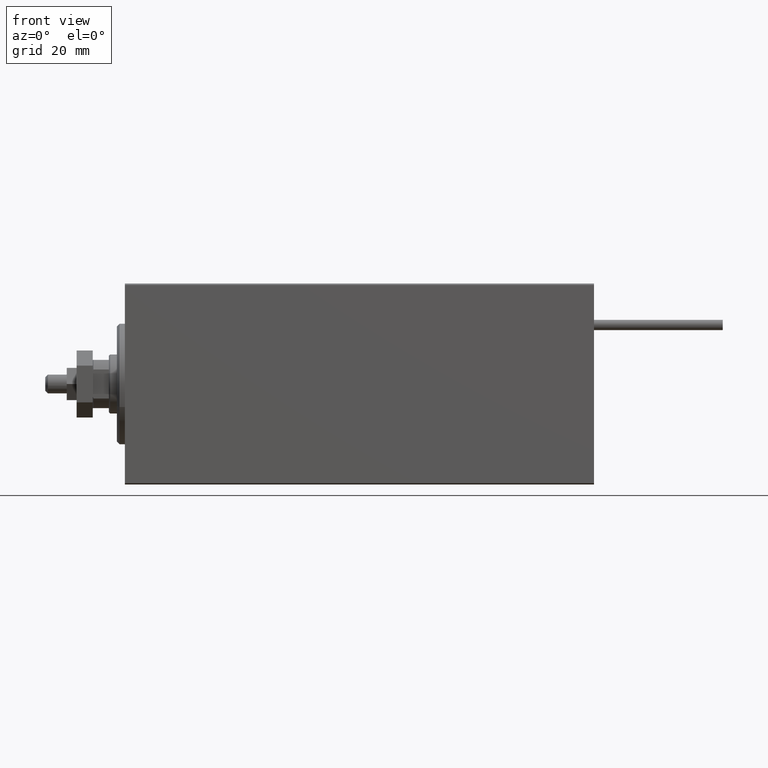
[diagram: clean part render]
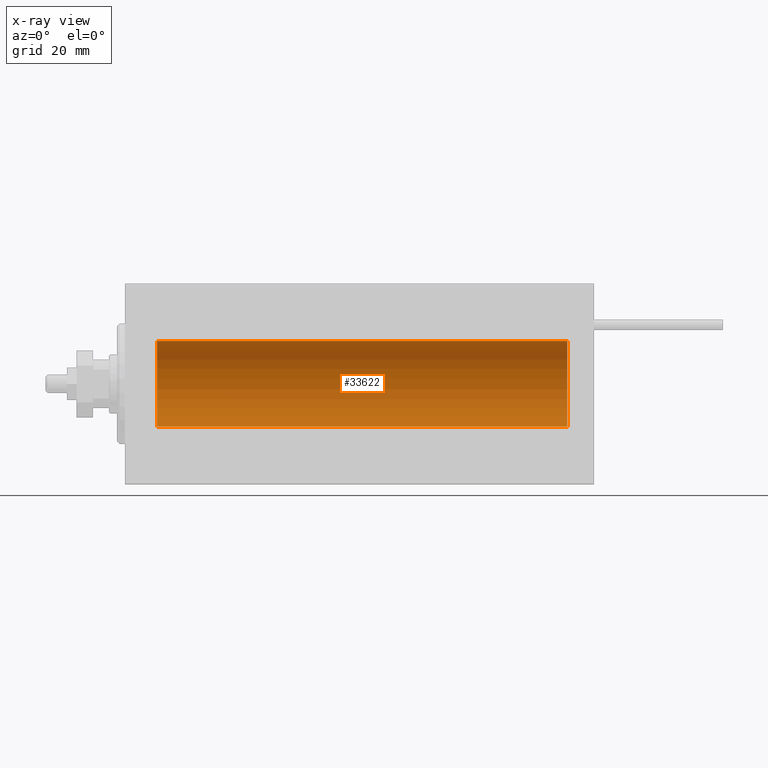
[diagram: x-ray — body ghosted, one internal face saturated and labeled with its STEP entity id]
A machine part, front view, then the same camera in x-ray: the body is ghosted and one INTERNAL B-rep face — a face not visible from any outside direction — is saturated and labeled: STEP entity #33622.
In plain terms, the highlighted cylindrical surface (partial cylindrical patch) has radius 16 mm, axis along (-1, -0, -0).
Its self-contained STEP definition (entity closure, byte-faithful):
#1612 = DIRECTION ( 'NONE',  ( 0.000000000000000000, 0.000000000000000000, 1.000000000000000000 ) ) ;
#3026 = VERTEX_POINT ( 'NONE', #48703 ) ;
#3628 = VERTEX_POINT ( 'NONE', #38460 ) ;
#4246 = DIRECTION ( 'NONE',  ( 0.000000000000000000, 0.000000000000000000, 1.000000000000000000 ) ) ;
#6446 = DIRECTION ( 'NONE',  ( 0.000000000000000000, 0.000000000000000000, 1.000000000000000000 ) ) ;
#9711 = DIRECTION ( 'NONE',  ( -1.000000000000000000, -0.000000000000000000, -0.000000000000000000 ) ) ;
#10874 = AXIS2_PLACEMENT_3D ( 'NONE', #36497, #29932, #6446 ) ;
#12314 = EDGE_LOOP ( 'NONE', ( #29090, #31510, #23048, #23553 ) ) ;
#12508 = AXIS2_PLACEMENT_3D ( 'NONE', #28621, #31914, #1612 ) ;
#12799 = AXIS2_PLACEMENT_3D ( 'NONE', #46923, #32015, #4246 ) ;
#16524 = LINE ( 'NONE', #17271, #29436 ) ;
#16596 = CYLINDRICAL_SURFACE ( 'NONE', #12799, 16.00000000000000000 ) ;
#17271 = CARTESIAN_POINT ( 'NONE',  ( 165.0000000000000000, 1.959434878635765131E-15, -16.00000000000000000 ) ) ;
#17687 = VECTOR ( 'NONE', #20949, 1000.000000000000000 ) ;
#19580 = EDGE_CURVE ( 'NONE', #27914, #3026, #43926, .T. ) ;
#20949 = DIRECTION ( 'NONE',  ( -1.000000000000000000, -0.000000000000000000, -0.000000000000000000 ) ) ;
#23019 = CIRCLE ( 'NONE', #12508, 16.00000000000000000 ) ;
#23048 = ORIENTED_EDGE ( 'NONE', *, *, #38127, .T. ) ;
#23553 = ORIENTED_EDGE ( 'NONE', *, *, #19580, .T. ) ;
#23650 = EDGE_CURVE ( 'NONE', #33860, #3026, #16524, .T. ) ;
#27914 = VERTEX_POINT ( 'NONE', #29751 ) ;
#28621 = CARTESIAN_POINT ( 'NONE',  ( 165.0000000000000000, 0.000000000000000000, 0.000000000000000000 ) ) ;
#29042 = LINE ( 'NONE', #44435, #17687 ) ;
#29090 = ORIENTED_EDGE ( 'NONE', *, *, #23650, .F. ) ;
#29436 = VECTOR ( 'NONE', #9711, 1000.000000000000000 ) ;
#29751 = CARTESIAN_POINT ( 'NONE',  ( 12.00000000000001066, 0.000000000000000000, 16.00000000000000000 ) ) ;
#29932 = DIRECTION ( 'NONE',  ( -1.000000000000000000, 0.000000000000000000, 0.000000000000000000 ) ) ;
#30219 = CARTESIAN_POINT ( 'NONE',  ( 165.0000000000000000, 1.959434878635765131E-15, -16.00000000000000000 ) ) ;
#31510 = ORIENTED_EDGE ( 'NONE', *, *, #48926, .F. ) ;
#31914 = DIRECTION ( 'NONE',  ( -1.000000000000000000, 0.000000000000000000, 0.000000000000000000 ) ) ;
#32015 = DIRECTION ( 'NONE',  ( -1.000000000000000000, -0.000000000000000000, -0.000000000000000000 ) ) ;
#33622 = ADVANCED_FACE ( 'NONE', ( #39334 ), #16596, .F. ) ;
#33860 = VERTEX_POINT ( 'NONE', #30219 ) ;
#36497 = CARTESIAN_POINT ( 'NONE',  ( 12.00000000000001066, 0.000000000000000000, 0.000000000000000000 ) ) ;
#38127 = EDGE_CURVE ( 'NONE', #3628, #27914, #29042, .T. ) ;
#38460 = CARTESIAN_POINT ( 'NONE',  ( 165.0000000000000000, 0.000000000000000000, 16.00000000000000000 ) ) ;
#39334 = FACE_OUTER_BOUND ( 'NONE', #12314, .T. ) ;
#43926 = CIRCLE ( 'NONE', #10874, 16.00000000000000000 ) ;
#44435 = CARTESIAN_POINT ( 'NONE',  ( 165.0000000000000000, 0.000000000000000000, 16.00000000000000000 ) ) ;
#46923 = CARTESIAN_POINT ( 'NONE',  ( 165.0000000000000000, 0.000000000000000000, 0.000000000000000000 ) ) ;
#48703 = CARTESIAN_POINT ( 'NONE',  ( 12.00000000000001066, 1.959434878635765131E-15, -16.00000000000000000 ) ) ;
#48926 = EDGE_CURVE ( 'NONE', #3628, #33860, #23019, .T. ) ;